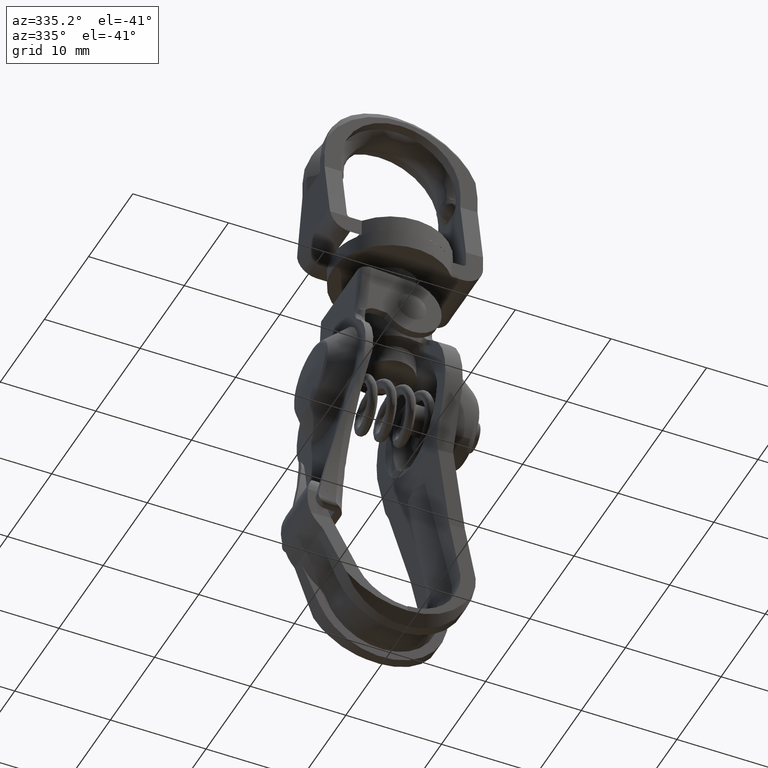
[diagram: clean part render]
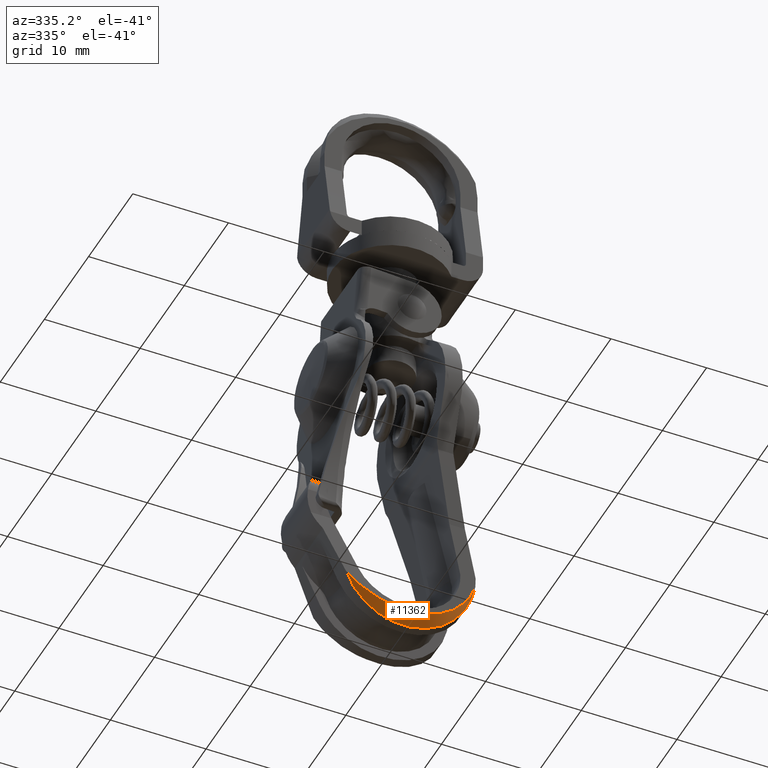
[diagram: same view with one face highlighted and labeled with its STEP entity id]
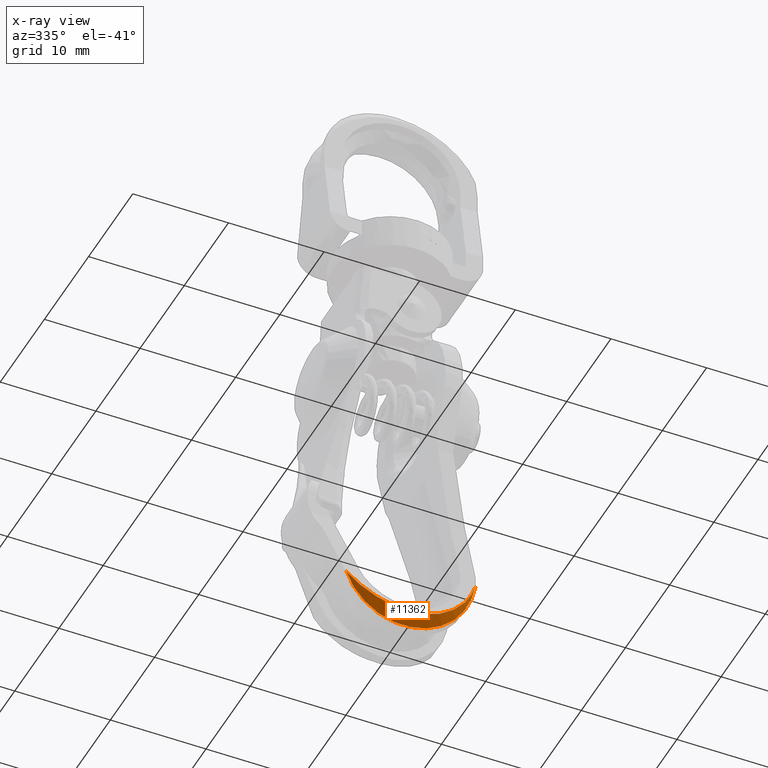
[diagram: x-ray of the same camera — body ghosted, the highlighted face saturated]
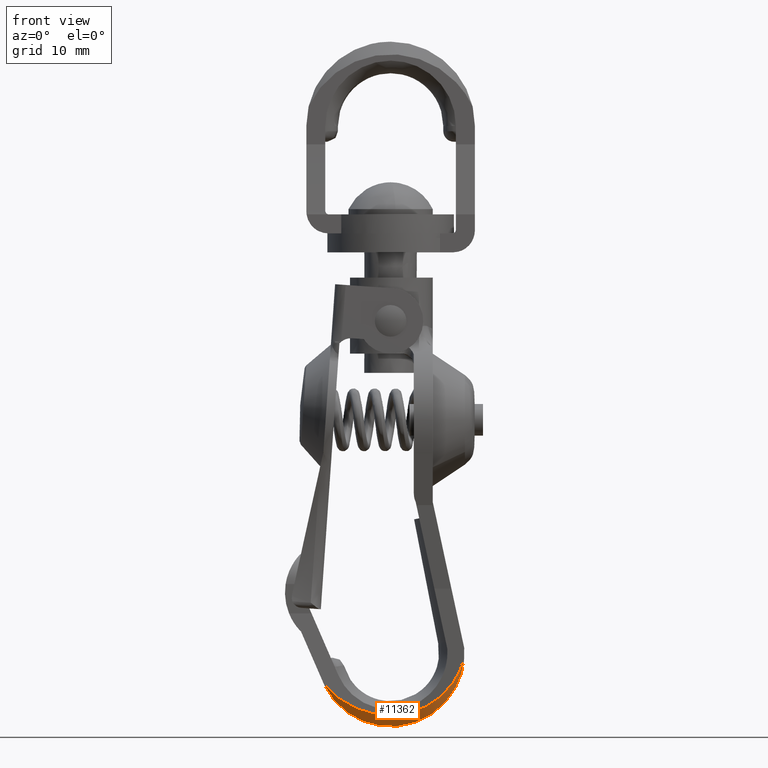
[diagram: same view with one face highlighted and labeled with its STEP entity id]
A machine part, auxiliary view. The second image highlights one B-rep face of the part: STEP entity #11362.
The next image is the same camera in x-ray: the body ghosted, the highlighted face saturated — about 0% of this face is hidden behind the body in this view.
A second angle (front view) of the same face is appended — the face is thin or edge-on in the first view.
In plain terms, the highlighted face is a freeform B-spline surface patch.
Its self-contained STEP definition (entity closure, byte-faithful):
#11252=CARTESIAN_POINT('',(-5.905271122100509,-4.252755935271439,-34.201251326570272));
#11253=CARTESIAN_POINT('',(-6.949858108022698,-2.970794081135053,-34.944413218646552));
#11254=CARTESIAN_POINT('',(3.313533534349373,-4.252755935271439,-47.159186162252055));
#11255=CARTESIAN_POINT('',(3.899666488422262,-2.970794081135052,-50.194484996715893));
#11256=CARTESIAN_POINT('',(7.044931063377153,-4.252755935271439,-31.700495823807369));
#11257=CARTESIAN_POINT('',(8.291113186663832,-2.970794081135053,-32.001297560160573));
#11265=(BOUNDED_SURFACE()B_SPLINE_SURFACE(1,2,((#11252,#11254,#11256),(#11253,#11255,#11257)),.UNSPECIFIED.,.F.,.F.,.U.)B_SPLINE_SURFACE_WITH_KNOTS((2,2),(3,3),(0.0,1.0),(0.0,21.944738146341411),.UNSPECIFIED.)GEOMETRIC_REPRESENTATION_ITEM()RATIONAL_B_SPLINE_SURFACE(((1.0,0.414693242656239,1.0),(1.0,0.414693242656239,1.0)))REPRESENTATION_ITEM('')SURFACE());
#11266=CARTESIAN_POINT('',(-6.294911165316560,-3.726013125309975,-34.561714131132049));
#11267=VERTEX_POINT('',#11266);
#11268=CARTESIAN_POINT('',(6.976595349368139,-4.222251191568015,-32.071941720085903));
#11269=VERTEX_POINT('',#11268);
#11270=CARTESIAN_POINT('',(-6.294911165316506,-3.726013125309961,-34.561714131132042));
#11271=CARTESIAN_POINT('',(-6.129393621015759,-3.660351423743323,-34.902019657072607));
#11272=CARTESIAN_POINT('',(-5.937783730746544,-3.598615233607351,-35.226265352540800));
#11273=CARTESIAN_POINT('',(-5.611619277670555,-3.511465927012832,-35.688712374959891));
#11274=CARTESIAN_POINT('',(-5.496408683270869,-3.483329928498107,-35.838855473840553));
#11275=CARTESIAN_POINT('',(-5.252689760580400,-3.428867148930307,-36.130920590498732));
#11276=CARTESIAN_POINT('',(-5.123715875278982,-3.402469043364859,-36.273233965513462));
#11277=CARTESIAN_POINT('',(-4.723287711978244,-3.327297687705123,-36.680295419215398));
#11278=CARTESIAN_POINT('',(-4.436738155443805,-3.282085581788433,-36.927603569597871));
#11279=CARTESIAN_POINT('',(-3.977966051267060,-3.221175858763297,-37.262956497071407));
#11280=CARTESIAN_POINT('',(-3.820193790287689,-3.202030440055123,-37.368777037994391));
#11281=CARTESIAN_POINT('',(-3.576100945308623,-3.175050256228935,-37.518355934823362));
#11282=CARTESIAN_POINT('',(-3.493496035171673,-3.166346910324346,-37.566688341544257));
#11283=CARTESIAN_POINT('',(-3.325758043545129,-3.149525429993675,-37.660239883071448));
#11284=CARTESIAN_POINT('',(-3.240615426946165,-3.141409028840918,-37.705449742937212));
#11285=CARTESIAN_POINT('',(-2.812627046505352,-3.102665645212646,-37.921545516226047));
#11286=CARTESIAN_POINT('',(-2.459816186674170,-3.077182912880574,-38.064605061876648));
#11287=CARTESIAN_POINT('',(-1.915359105460093,-3.046813707462123,-38.235546252516677));
#11288=CARTESIAN_POINT('',(-1.731320397353028,-3.038007480271493,-38.285215254972648));
#11289=CARTESIAN_POINT('',(-1.451364991959339,-3.026789857177578,-38.348554136003152));
#11290=CARTESIAN_POINT('',(-1.357396150306126,-3.023383071549832,-38.367803997664929));
#11291=CARTESIAN_POINT('',(-1.168136067827110,-3.017242979937711,-38.402515062370348));
#11292=CARTESIAN_POINT('',(-1.072686447019789,-3.014506399207674,-38.417994806336473));
#11293=CARTESIAN_POINT('',(-0.786080924342336,-3.007366217026046,-38.458398536794093));
#11294=CARTESIAN_POINT('',(-0.594363033931727,-3.004015109052603,-38.477381914468467));
#11295=CARTESIAN_POINT('',(-0.305819196721181,-3.001085357140243,-38.493979987677328));
#11296=CARTESIAN_POINT('',(-0.209476543848924,-3.000458770883874,-38.497530650355237));
#11297=CARTESIAN_POINT('',(-0.016466712730330,-2.999908996442597,-38.500646003938208));
#11298=CARTESIAN_POINT('',(0.080255098303637,-2.999987520307551,-38.500200992177753));
#11299=CARTESIAN_POINT('',(0.561111957211355,-3.002127001798904,-38.488077729856272));
#11300=CARTESIAN_POINT('',(0.939850598331322,-3.009370525626041,-38.447006470373637));
#11301=CARTESIAN_POINT('',(1.685893508667817,-3.034573747415013,-38.304555909391048));
#11302=CARTESIAN_POINT('',(2.053197887183401,-3.052532424623793,-38.203177021532312));
#11303=CARTESIAN_POINT('',(2.504879583441795,-3.082088999479557,-38.037189075327213));
#11304=CARTESIAN_POINT('',(2.594754109617569,-3.088354949128322,-38.002034944417382));
#11305=CARTESIAN_POINT('',(2.772003080603978,-3.101483751431498,-37.928468420154530));
#11306=CARTESIAN_POINT('',(2.859596120971681,-3.108360482194911,-37.889978042984488));
#11307=CARTESIAN_POINT('',(3.119329547361713,-3.129919931898489,-37.769467332601451));
#11308=CARTESIAN_POINT('',(3.288429284463184,-3.145530205418706,-37.682415740099380));
#11309=CARTESIAN_POINT('',(3.783758457169155,-3.196074669670395,-37.401465759214020));
#11310=CARTESIAN_POINT('',(4.098098111999272,-3.234693723942991,-37.187904192020298));
#11311=CARTESIAN_POINT('',(4.470627061487063,-3.289544205258264,-36.887268330673074));
#11312=CARTESIAN_POINT('',(4.544149231905403,-3.300854904867121,-36.825395381576932));
#11313=CARTESIAN_POINT('',(4.687800041066733,-3.323939287813808,-36.699390251454709));
#11314=CARTESIAN_POINT('',(4.758100024358218,-3.335737203591931,-36.635124990417282));
#11315=CARTESIAN_POINT('',(4.964500319648450,-3.371896068834216,-36.438606545598923));
#11316=CARTESIAN_POINT('',(5.096108340984531,-3.397020835858165,-36.302636783458141));
#11317=CARTESIAN_POINT('',(5.473287878327494,-3.475483523372556,-35.880146229118708));
#11318=CARTESIAN_POINT('',(5.701329690338712,-3.531887517077721,-35.579138644287141));
#11319=CARTESIAN_POINT('',(5.956481486589272,-3.607939018303713,-35.178228047545133));
#11320=CARTESIAN_POINT('',(6.006102783663753,-3.623461664917209,-35.096632207913032));
#11321=CARTESIAN_POINT('',(6.101541484433014,-3.654831783183686,-34.932233296364601));
#11322=CARTESIAN_POINT('',(6.147424017770756,-3.670695443456317,-34.849343844224087));
#11323=CARTESIAN_POINT('',(6.279658308839588,-3.718824584320099,-34.598644298503487));
#11324=CARTESIAN_POINT('',(6.360605516696523,-3.751627455077079,-34.428806321950482));
#11325=CARTESIAN_POINT('',(6.582262024509650,-3.852233601205621,-33.911361168055727));
#11326=CARTESIAN_POINT('',(6.701920704744655,-3.922220983200006,-33.555873221233448));
#11327=CARTESIAN_POINT('',(6.838535633693344,-4.031995619052830,-33.006658337289458));
#11328=CARTESIAN_POINT('',(6.876902491246755,-4.069458890232749,-32.820576250551532));
#11329=CARTESIAN_POINT('',(6.938134214937051,-4.145129908838868,-32.447630267117063));
#11330=CARTESIAN_POINT('',(6.961158528374663,-4.183441547458976,-32.260241418761680));
#11331=CARTESIAN_POINT('',(6.976595349368139,-4.222251191568015,-32.071941720085903));
#11332=B_SPLINE_CURVE_WITH_KNOTS('',3,(#11270,#11271,#11272,#11273,#11274,#11275,#11276,#11277,#11278,#11279,#11280,#11281,#11282,#11283,#11284,#11285,#11286,#11287,#11288,#11289,#11290,#11291,#11292,#11293,#11294,#11295,#11296,#11297,#11298,#11299,#11300,#11301,#11302,#11303,#11304,#11305,#11306,#11307,#11308,#11309,#11310,#11311,#11312,#11313,#11314,#11315,#11316,#11317,#11318,#11319,#11320,#11321,#11322,#11323,#11324,#11325,#11326,#11327,#11328,#11329,#11330,#11331),.UNSPECIFIED.,.F.,.U.,(4,2,2,2,2,2,2,2,2,2,2,2,2,2,2,2,2,2,2,2,2,2,2,2,2,2,2,2,2,2,4),(0.0,0.062500000000000,0.093749999999999,0.124999999999999,0.187499999999998,0.218749999999998,0.234374999999998,0.249999999999999,0.312499999999998,0.343749999999998,0.359374999999998,0.374999999999998,0.406249999999998,0.421874999999997,0.437499999999997,0.499999999999997,0.562499999999997,0.578124999999996,0.593749999999996,0.624999999999996,0.687499999999995,0.703124999999995,0.718749999999995,0.749999999999994,0.812499999999994,0.828124999999994,0.843749999999994,0.874999999999996,0.937499999999998,0.968749999999999,1.0),.UNSPECIFIED.);
#11333=EDGE_CURVE('',#11267,#11269,#11332,.T.);
#11334=ORIENTED_EDGE('',*,*,#11333,.T.);
#11335=CARTESIAN_POINT('',(0.0,-4.036327999999799,-37.463687000000000));
#11336=VERTEX_POINT('',#11335);
#11337=CARTESIAN_POINT('',(0.0,-4.036327999999799,-37.463687000000000));
#11338=CARTESIAN_POINT('',(0.469498429298523,-4.036333167160045,-37.463537153110707));
#11339=CARTESIAN_POINT('',(1.507330066026201,-4.039850869822756,-37.361524291950857));
#11340=CARTESIAN_POINT('',(2.856359893229120,-4.054943718011692,-36.923833908643331));
#11341=CARTESIAN_POINT('',(4.176463599312219,-4.080342486756138,-36.187273341140440));
#11342=CARTESIAN_POINT('',(5.181312294716681,-4.109778149466553,-35.333643440845982));
#11343=CARTESIAN_POINT('',(5.967161173919330,-4.143897545535272,-34.344185960292933));
#11344=CARTESIAN_POINT('',(6.565155329032626,-4.179304825173806,-33.317380045136737));
#11345=CARTESIAN_POINT('',(6.852145183233326,-4.205768007403258,-32.549951642725020));
#11346=CARTESIAN_POINT('',(6.976595349368139,-4.222251191568015,-32.071941720085903));
#11347=B_SPLINE_CURVE_WITH_KNOTS('',3,(#11337,#11338,#11339,#11340,#11341,#11342,#11343,#11344,#11345,#11346),.UNSPECIFIED.,.F.,.U.,(4,1,1,1,1,1,1,4),(0.000000053351004,1.408510368680256,3.113575852593362,4.225577428686723,5.930604655696833,7.042610299419472,8.006348062193410,9.488991566929776),.UNSPECIFIED.);
#11348=EDGE_CURVE('',#11336,#11269,#11347,.T.);
#11349=ORIENTED_EDGE('',*,*,#11348,.F.);
#11350=CARTESIAN_POINT('',(-6.294911165316560,-3.726013125309975,-34.561714131132049));
#11351=CARTESIAN_POINT('',(-5.884774068269449,-3.777416872139690,-35.042422948804038));
#11352=CARTESIAN_POINT('',(-4.979967774365112,-3.867381474886277,-35.883739747111377));
#11353=CARTESIAN_POINT('',(-3.393031642024161,-3.965994090152100,-36.805933250317423));
#11354=CARTESIAN_POINT('',(-1.715288918428699,-4.023590889226635,-37.344564536458172));
#11355=CARTESIAN_POINT('',(-0.559388789230896,-4.036263943082620,-37.463084597971793));
#11356=CARTESIAN_POINT('',(0.0,-4.036327999999799,-37.463687000000000));
#11357=B_SPLINE_CURVE_WITH_KNOTS('',3,(#11350,#11351,#11352,#11353,#11354,#11355,#11356),.UNSPECIFIED.,.F.,.U.,(4,1,1,1,4),(5.892767E-009,1.901925494252904,3.691972435183776,5.482020493498421,7.160190004383865),.UNSPECIFIED.);
#11358=EDGE_CURVE('',#11267,#11336,#11357,.T.);
#11359=ORIENTED_EDGE('',*,*,#11358,.F.);
#11360=EDGE_LOOP('',(#11334,#11349,#11359));
#11361=FACE_OUTER_BOUND('',#11360,.T.);
#11362=ADVANCED_FACE('',(#11361),#11265,.T.);